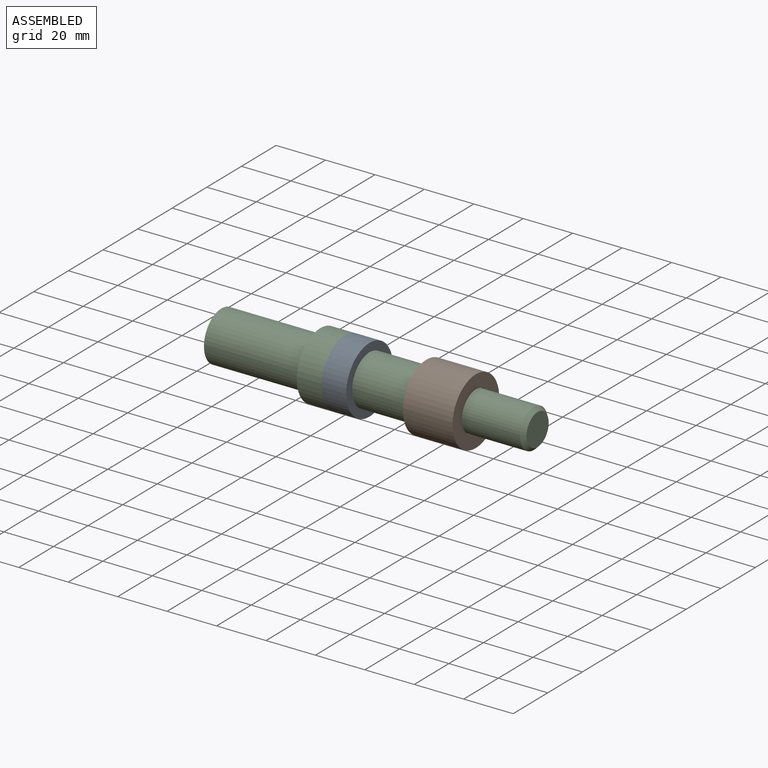
[diagram: assembled view]
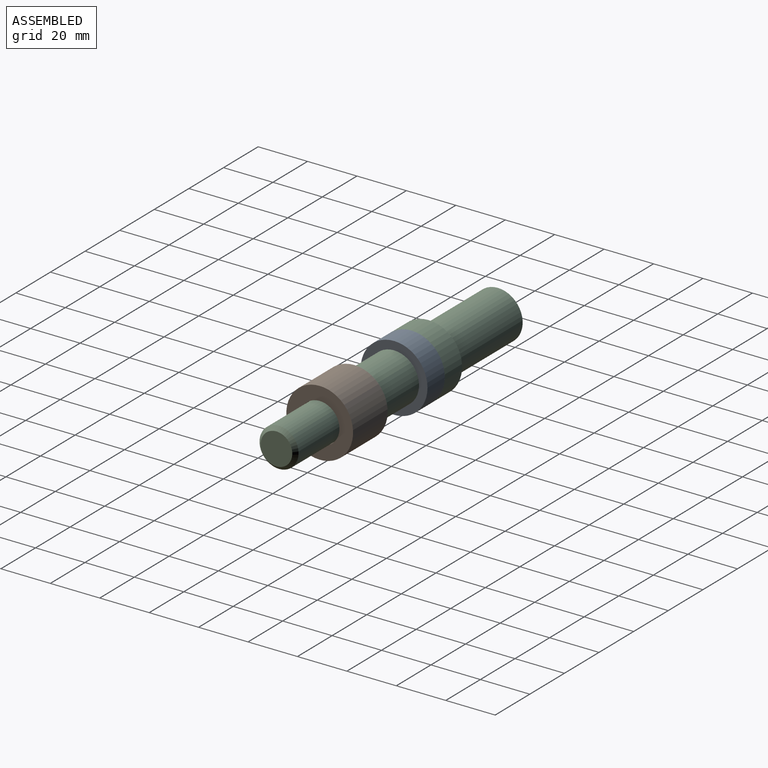
[diagram: assembled view, second angle]
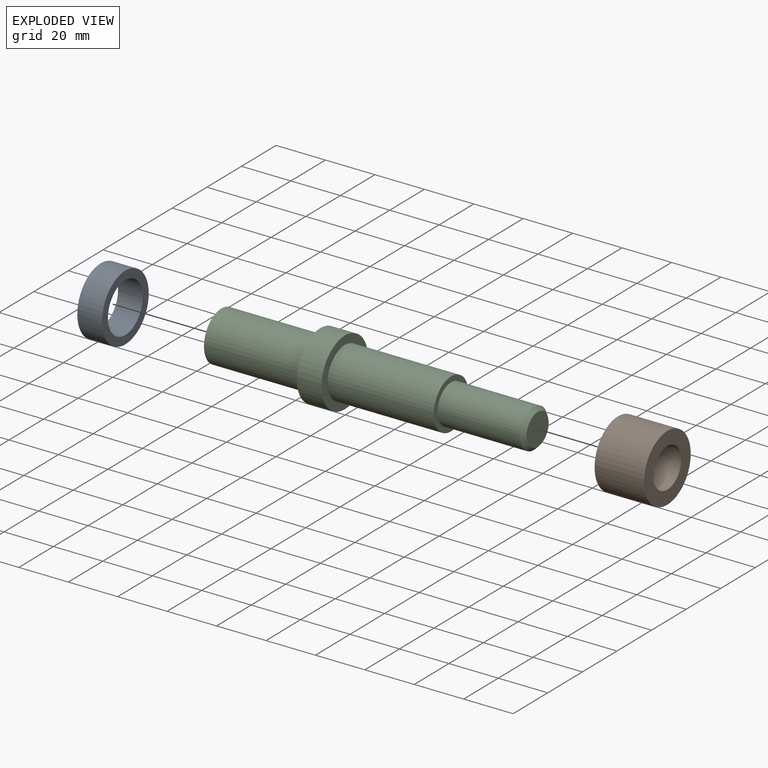
[diagram: exploded view]
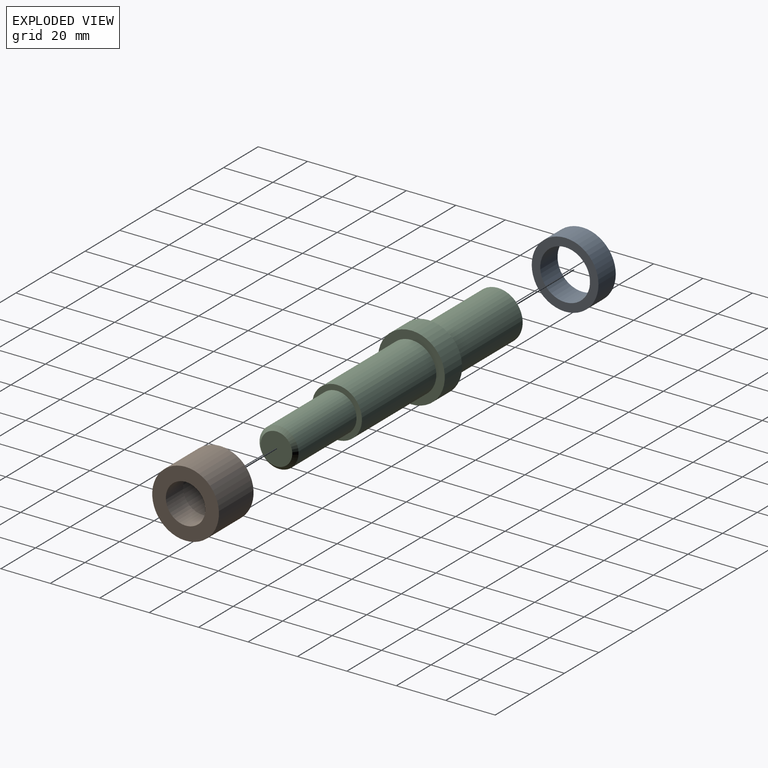
[diagram: exploded view, second angle]
ASSEMBLY  parts=3 mates=2
PART A: 4 faces, bbox 10x27x27 mm
  f0: cylinder r=10.08mm len=20.15mm, axis (-1,0,0), area 633mm2, adj f2,f3
  f1: cylinder r=13.5mm len=27mm, axis (-1,0,0), area 848.2mm2, adj f2,f3
  f2: plane 27x27mm, normal (1,0,0), area 253.7mm2, adj f0,f1
  f3: plane 27x27mm, normal (-1,0,0), area 253.7mm2, adj f0,f1
PART B: 6 faces, bbox 20x27x27 mm
  f0: cylinder r=13.5mm len=27mm, axis (-1,0,0), area 1696.5mm2, adj f1,f5
  f1: plane 27x27mm, normal (-1,0,0), area 253.7mm2, adj f0,f2
  f2: cylinder r=10.08mm len=20.15mm, axis (-1,0,0), area 633mm2, adj f1,f3
  f3: plane 20.15x20.15mm, normal (-1,0,0), area 117.8mm2, adj f2,f4
  f4: cylinder r=8mm len=16mm, axis (-1,0,0), area 502.7mm2, adj f3,f5
  f5: plane 27x27mm, normal (1,0,0), area 371.5mm2, adj f0,f4
PART C: 10 faces, bbox 128x27x27 mm
  f0: plane 12.8x12.8mm, normal (1,0,0), area 128.7mm2, adj f9
  f1: cylinder r=7.9mm len=33.5mm, axis (1,0,0), area 1662.8mm2, adj f2,f9
  f2: plane 20.15x20.15mm, normal (1,0,0), area 122.8mm2, adj f1,f3
  f3: cylinder r=10.08mm len=43mm, axis (1,0,0), area 2722mm2, adj f2,f4
  f4: plane 27x27mm, normal (1,0,0), area 253.7mm2, adj f3,f5
  f5: cylinder r=13.5mm len=27mm, axis (1,0,0), area 848.2mm2, adj f4,f6
  f6: plane 27x27mm, normal (-1,0,0), area 258.4mm2, adj f5,f7
  f7: cylinder r=10mm len=40mm, axis (1,0,0), area 2513.3mm2, adj f6,f8
  f8: plane 20x20mm, normal (-1,0,0), area 314.2mm2, adj f7
  f9: cone r=6.4mm half-angle=45deg, axis (-1,0,0), area 95.3mm2, adj f0,f1
PLACE A t=(-40.13,0,0)mm
PLACE B at identity
PLACE C t=(-3.79,0,0)mm
MATE slider A.f0 <-> C.f1  axis (-1,0,0) through (-40.13,0,0)mm
MATE slider C.f1 <-> B.f0  axis (1,0,0) through (2.87,0,0)mm
